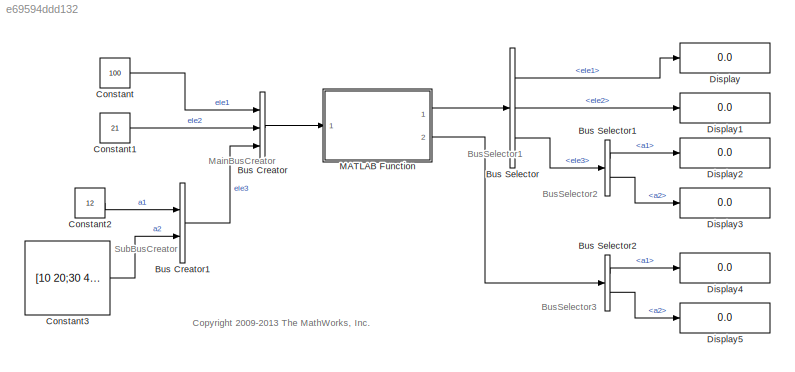
MODEL slx_e69594ddd132
KIND model
CONFIG AbsTol = auto
CONFIG EnableMultiTasking = on
CONFIG FixedStep = 1.000000
CONFIG MaxStep = auto
CONFIG MinStep = auto
CONFIG PreLoadFcn = load businfo.mat;
CONFIG RelTol = 1e-3
CONFIG SampleTimeConstraint = Unconstrained
CONFIG Solver = FixedStepDiscrete
CONFIG SolverName = FixedStepDiscrete
CONFIG StartTime = 0.0
CONFIG StopTime = 1
BLOCK [BusCreator] Bus Creator
  DisplayOption = bar
  InheritFromInputs = on
  Inputs = 3
  NonVirtualBus = on
  OutDataTypeStr = Bus: MainBus
  Ports = [3, 1]
BLOCK [BusCreator] Bus Creator1
  DisplayOption = bar
  InheritFromInputs = on
  Inputs = 2
  NonVirtualBus = on
  OutDataTypeStr = Bus: SubBus
  Ports = [2, 1]
BLOCK [BusSelector] Bus Selector
  OutputAsBus = off
  OutputSignals = ele1,ele2,ele3
  Ports = [1, 3]
BLOCK [BusSelector] Bus Selector1
  OutputAsBus = off
  OutputSignals = a1,a2
  Ports = [1, 2]
BLOCK [BusSelector] Bus Selector2
  OutputAsBus = off
  OutputSignals = a1,a2
  Ports = [1, 2]
BLOCK [Constant] Constant
  OutDataTypeStr = double
  Value = 100
BLOCK [Constant] Constant1
  OutDataTypeStr = single
  Value = 21
BLOCK [Constant] Constant2
  OutDataTypeStr = double
  Value = 12
BLOCK [Constant] Constant3
  OutDataTypeStr = int8
  Value = [10 20;30 40]
BLOCK [Display] Display
  Decimation = 1
  Ports = [1]
BLOCK [Display] Display1
  Decimation = 1
  Ports = [1]
BLOCK [Display] Display2
  Decimation = 1
  Ports = [1]
BLOCK [Display] Display3
  Decimation = 1
  Ports = [1]
BLOCK [Display] Display4
  Decimation = 1
  Ports = [1]
BLOCK [Display] Display5
  Decimation = 1
  Ports = [1]
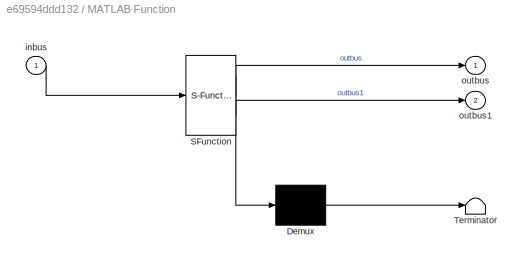
BLOCK [SubSystem] MATLAB Function
  ErrorFcn = Stateflow.Translate.translate
  PermitHierarchicalResolution = ExplicitOnly
  Ports = [1, 2]
  RequestExecContextInheritance = off
  SFBlockType = MATLAB Function
  TreatAsAtomicUnit = on
  Variant = off
BLOCK [Demux] MATLAB Function/ Demux 
  Outputs = 1
  Ports = [1, 1]
BLOCK [S-Function] MATLAB Function/ SFunction 
  EnableBusSupport = on
  FunctionName = sf_sfun
  PortCounts = [1 3]
  Ports = [1, 3]
  SFcnIsStateOwnerBlock = off
  SFunctionDeploymentMode = off
  Tag = Stateflow S-Function MFunctionBus 2
BLOCK [Terminator] MATLAB Function/ Terminator 
BLOCK [Inport] MATLAB Function/inbus
  IconDisplay = Port number
BLOCK [Outport] MATLAB Function/outbus
  IconDisplay = Port number
BLOCK [Outport] MATLAB Function/outbus1
  IconDisplay = Port number
  Port = 2
ANNOTATION (root): BusSelector1
ANNOTATION (root): BusSelector2
ANNOTATION (root): BusSelector3
ANNOTATION (root): <copyright redacted>
ANNOTATION (root): MainBusCreator
ANNOTATION (root): SubBusCreator
LINE Bus Creator1:1 -> Bus Creator:3
LINE Bus Creator:1 -> MATLAB Function:1
LINE Bus Selector1:1 -> Display2:1
LINE Bus Selector1:2 -> Display3:1
LINE Bus Selector2:1 -> Display4:1
LINE Bus Selector2:2 -> Display5:1
LINE Bus Selector:1 -> Display:1
LINE Bus Selector:2 -> Display1:1
LINE Bus Selector:3 -> Bus Selector1:1
LINE Constant1:1 -> Bus Creator:2
LINE Constant2:1 -> Bus Creator1:1
LINE Constant3:1 -> Bus Creator1:2
LINE Constant:1 -> Bus Creator:1
LINE MATLAB Function:1 -> Bus Selector:1
LINE MATLAB Function:2 -> Bus Selector2:1
CHART MATLAB Function states=1 transitions=1
  STATE_LABEL 'eML_blk_kernel()'
  STATE_LABEL "SCRIPT:\nfunction [outbus, outbus1] = fcn(inbus)\n%#codegen\n\nsubstruct.a1 = inbus.ele3.a1;\nsubstruct.a2 = int8([1 2;3 4]);\n\nmystruct = struct('ele1',20.5, 'ele2', single(100), 'ele3', substruct);\n\noutbus = mystruct;\noutbus.ele3.a2 = 2*(substruct.a2);\n\noutbus1 = inbus.ele3;"
